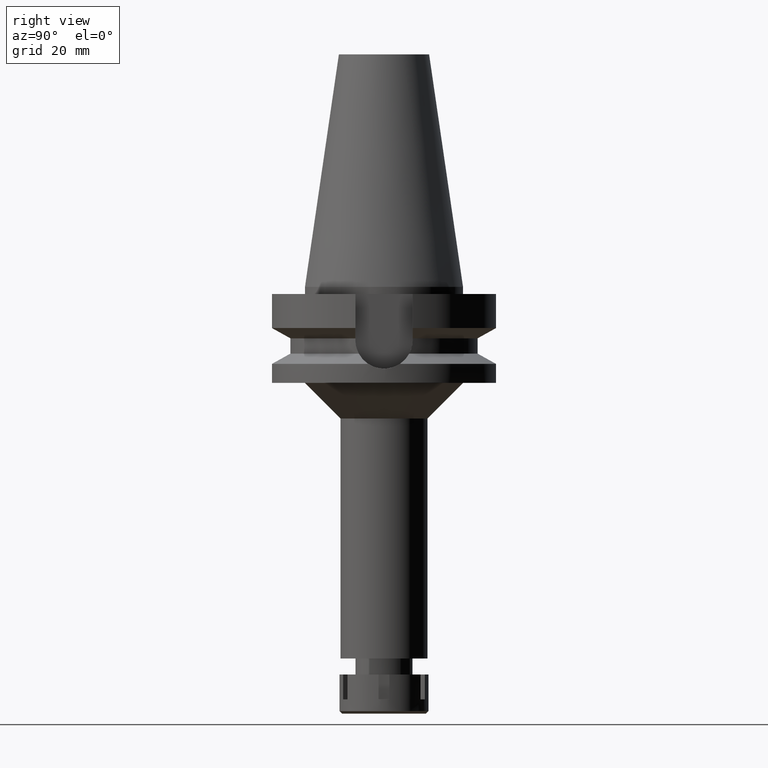
[diagram: clean part render]
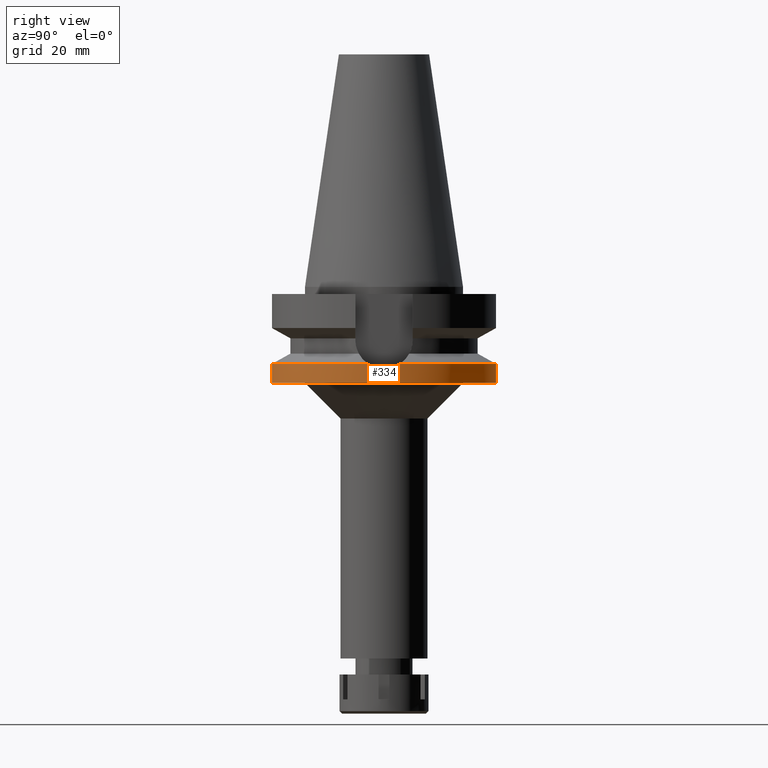
[diagram: same view with one face highlighted and labeled with its STEP entity id]
A machine part, right view. The second image highlights one B-rep face of the part: STEP entity #334.
In plain terms, the highlighted cylindrical surface (partial cylindrical patch) has radius 31.5 mm, axis along (0, 0, -1).
Its self-contained STEP definition (entity closure, byte-faithful):
#7 = CARTESIAN_POINT ( 'NONE',  ( 31.49278356124018430, 0.7711873034585519093, -22.97267690003748797 ) ) ;
#28 = ORIENTED_EDGE ( 'NONE', *, *, #3247, .T. ) ;
#34 = CARTESIAN_POINT ( 'NONE',  ( 0.0000000000000000000, 31.50000000000000000, -21.63449434733000132 ) ) ;
#54 = AXIS2_PLACEMENT_3D ( 'NONE', #587, #1985, #2297 ) ;
#124 = B_SPLINE_CURVE_WITH_KNOTS ( 'NONE', 3,
 ( #285, #2193, #7, #3601, #1409, #2209, #2486, #3630, #1657, #3310, #514, #530, #818, #3326, #267 ),
 .UNSPECIFIED., .F., .F.,
 ( 4, 2, 2, 1, 1, 1, 2, 2, 4 ),
 ( 0.0000000000000000000, 0.2500000000000004441, 0.3750000000000004441, 0.4375000000000006661, 0.4687500000000011657, 0.4843750000000011657, 0.4921875000000012768, 0.5000000000000013323, 1.000000000000000000 ),
 .UNSPECIFIED. ) ;
#149 = CARTESIAN_POINT ( 'NONE',  ( 31.40205153632907198, -2.481143929156545802, -22.60832449611487860 ) ) ;
#189 = EDGE_CURVE ( 'NONE', #675, #2168, #2985, .T. ) ;
#267 = CARTESIAN_POINT ( 'NONE',  ( 31.17899877608999759, 4.485536235554000051, -21.63449434733000132 ) ) ;
#285 = CARTESIAN_POINT ( 'NONE',  ( 31.50000030226999570, 4.154793140189999711E-14, -23.00000138148999795 ) ) ;
#334 = ADVANCED_FACE ( 'NONE', ( #1579 ), #1335, .T. ) ;
#402 = CARTESIAN_POINT ( 'NONE',  ( 0.0000000000000000000, 31.50000000000000000, -21.63449434733000132 ) ) ;
#413 = EDGE_CURVE ( 'NONE', #3111, #1656, #3233, .T. ) ;
#442 = CARTESIAN_POINT ( 'NONE',  ( 31.50000030226999570, 4.154793140189999711E-14, -23.00000138148999795 ) ) ;
#489 = CARTESIAN_POINT ( 'NONE',  ( 0.0000000000000000000, 2.135416623673000070E-14, -27.00000000000000000 ) ) ;
#491 = DIRECTION ( 'NONE',  ( 0.0000000000000000000, -1.000000000000000000, 0.0000000000000000000 ) ) ;
#495 = VECTOR ( 'NONE', #2205, 1000.000000000000000 ) ;
#514 = CARTESIAN_POINT ( 'NONE',  ( 31.41519654757096802, 2.308329250097261198, -22.66195675239512752 ) ) ;
#530 = CARTESIAN_POINT ( 'NONE',  ( 31.41418307692317313, 2.322078179470666637, -22.65782554032704965 ) ) ;
#587 = CARTESIAN_POINT ( 'NONE',  ( 0.0000000000000000000, 0.0000000000000000000, -21.63449434733000132 ) ) ;
#675 = VERTEX_POINT ( 'NONE', #1827 ) ;
#711 = ORIENTED_EDGE ( 'NONE', *, *, #3063, .F. ) ;
#818 = CARTESIAN_POINT ( 'NONE',  ( 31.36324472120876550, 3.008186403282153254, -22.45010119746911315 ) ) ;
#975 = CARTESIAN_POINT ( 'NONE',  ( 31.27811616779987247, -3.746663409866644923, -22.08609477308995750 ) ) ;
#1041 = DIRECTION ( 'NONE',  ( 0.0000000000000000000, 0.0000000000000000000, -1.000000000000000000 ) ) ;
#1043 = ORIENTED_EDGE ( 'NONE', *, *, #1913, .F. ) ;
#1063 = CARTESIAN_POINT ( 'NONE',  ( 0.0000000000000000000, -31.50000000000000000, -21.63449434733000132 ) ) ;
#1078 = B_SPLINE_CURVE_WITH_KNOTS ( 'NONE', 3,
 ( #3274, #2083, #975, #3219, #2106, #1834, #2637, #149, #3241, #3502, #2953, #3559, #2141, #2991, #442 ),
 .UNSPECIFIED., .F., .F.,
 ( 4, 2, 2, 1, 1, 1, 2, 2, 4 ),
 ( 0.0000000000000000000, 0.2500000000000025535, 0.3750000000000032752, 0.4375000000000038303, 0.4687500000000041078, 0.4843750000000038858, 0.4921875000000039413, 0.5000000000000038858, 1.000000000000000000 ),
 .UNSPECIFIED. ) ;
#1102 = CARTESIAN_POINT ( 'NONE',  ( 31.17899877608999759, 4.485536235554000051, -21.63449434733000132 ) ) ;
#1154 = DIRECTION ( 'NONE',  ( 0.0000000000000000000, 1.099151708819000049E-13, -1.000000000000000000 ) ) ;
#1335 = CYLINDRICAL_SURFACE ( 'NONE', #3164, 31.50000000000000000 ) ;
#1409 = CARTESIAN_POINT ( 'NONE',  ( 31.46211241186344765, 1.552211430619329091, -22.85146869856793828 ) ) ;
#1503 = CARTESIAN_POINT ( 'NONE',  ( 0.0000000000000000000, 0.0000000000000000000, -21.63449434733000132 ) ) ;
#1579 = FACE_OUTER_BOUND ( 'NONE', #2222, .T. ) ;
#1656 = VERTEX_POINT ( 'NONE', #1102 ) ;
#1657 = CARTESIAN_POINT ( 'NONE',  ( 31.41961539193199826, 2.247536052689412589, -22.67995511560733135 ) ) ;
#1763 = CARTESIAN_POINT ( 'NONE',  ( 0.0000000000000000000, -31.50000000000000000, -27.00000000000000000 ) ) ;
#1765 = ORIENTED_EDGE ( 'NONE', *, *, #189, .T. ) ;
#1827 = CARTESIAN_POINT ( 'NONE',  ( 31.17899877608999759, -4.485536235554000051, -21.63449434733000132 ) ) ;
#1834 = CARTESIAN_POINT ( 'NONE',  ( 31.37855930989746156, -2.761990093287100212, -22.51192666843388324 ) ) ;
#1874 = AXIS2_PLACEMENT_3D ( 'NONE', #1503, #2909, #2356 ) ;
#1913 = EDGE_CURVE ( 'NONE', #3111, #2009, #2546, .T. ) ;
#1985 = DIRECTION ( 'NONE',  ( 0.0000000000000000000, 0.0000000000000000000, -1.000000000000000000 ) ) ;
#1991 = VERTEX_POINT ( 'NONE', #1763 ) ;
#2009 = VERTEX_POINT ( 'NONE', #2660 ) ;
#2031 = CIRCLE ( 'NONE', #2922, 31.50000000000000000 ) ;
#2033 = ORIENTED_EDGE ( 'NONE', *, *, #2846, .F. ) ;
#2083 = CARTESIAN_POINT ( 'NONE',  ( 31.23205437648185168, -4.116746326629337815, -21.88196564640763953 ) ) ;
#2095 = ORIENTED_EDGE ( 'NONE', *, *, #413, .T. ) ;
#2106 = CARTESIAN_POINT ( 'NONE',  ( 31.35450368001973231, -3.025551444174683802, -22.41216023115313050 ) ) ;
#2138 = CARTESIAN_POINT ( 'NONE',  ( 0.0000000000000000000, 2.135416623673000070E-14, 74.37000000000000455 ) ) ;
#2141 = CARTESIAN_POINT ( 'NONE',  ( 31.47113575803164309, -1.554964651594184843, -22.89006402809559049 ) ) ;
#2168 = VERTEX_POINT ( 'NONE', #2458 ) ;
#2193 = CARTESIAN_POINT ( 'NONE',  ( 31.50000030227001346, 0.3826090917182346507, -23.00000000000000355 ) ) ;
#2205 = DIRECTION ( 'NONE',  ( 0.0000000000000000000, -1.105773104655000034E-13, -1.000000000000000000 ) ) ;
#2209 = CARTESIAN_POINT ( 'NONE',  ( 31.44587474454636222, 1.845305156384686729, -22.78628520791379586 ) ) ;
#2222 = EDGE_LOOP ( 'NONE', ( #1765, #28, #2355, #1043, #2095, #2033, #711 ) ) ;
#2297 = DIRECTION ( 'NONE',  ( 0.0000000000000000000, 1.000000000000000000, 0.0000000000000000000 ) ) ;
#2355 = ORIENTED_EDGE ( 'NONE', *, *, #2492, .T. ) ;
#2356 = DIRECTION ( 'NONE',  ( 0.9898094849552905306, -0.1423979757318985240, 0.0000000000000000000 ) ) ;
#2430 = DIRECTION ( 'NONE',  ( 0.0000000000000000000, -1.000000000000000000, 0.0000000000000000000 ) ) ;
#2458 = CARTESIAN_POINT ( 'NONE',  ( 0.0000000000000000000, -31.50000000000000000, -21.63449434733000132 ) ) ;
#2486 = CARTESIAN_POINT ( 'NONE',  ( 31.43707934141627547, 1.991785373727276820, -22.75083979997737416 ) ) ;
#2492 = EDGE_CURVE ( 'NONE', #1991, #2009, #2031, .T. ) ;
#2517 = LINE ( 'NONE', #1063, #495 ) ;
#2546 = LINE ( 'NONE', #34, #2789 ) ;
#2637 = CARTESIAN_POINT ( 'NONE',  ( 31.38993145523567208, -2.631335982978365351, -22.55874663194875041 ) ) ;
#2660 = CARTESIAN_POINT ( 'NONE',  ( 0.0000000000000000000, 31.50000000000000000, -27.00000000000000000 ) ) ;
#2729 = CARTESIAN_POINT ( 'NONE',  ( 31.50000030226999570, 4.154793140189999711E-14, -23.00000138148999795 ) ) ;
#2789 = VECTOR ( 'NONE', #1154, 1000.000000000000000 ) ;
#2846 = EDGE_CURVE ( 'NONE', #3208, #1656, #124, .T. ) ;
#2909 = DIRECTION ( 'NONE',  ( 0.0000000000000000000, 0.0000000000000000000, -1.000000000000000000 ) ) ;
#2922 = AXIS2_PLACEMENT_3D ( 'NONE', #489, #2984, #2430 ) ;
#2953 = CARTESIAN_POINT ( 'NONE',  ( 31.41183231690728661, -2.353663757143418689, -22.64823938059995001 ) ) ;
#2984 = DIRECTION ( 'NONE',  ( 0.0000000000000000000, 0.0000000000000000000, 1.000000000000000000 ) ) ;
#2985 = CIRCLE ( 'NONE', #1874, 31.50000000000001421 ) ;
#2991 = CARTESIAN_POINT ( 'NONE',  ( 31.50000030226999925, -0.7652255573043680315, -23.00000000000000000 ) ) ;
#3063 = EDGE_CURVE ( 'NONE', #675, #3208, #1078, .T. ) ;
#3111 = VERTEX_POINT ( 'NONE', #402 ) ;
#3164 = AXIS2_PLACEMENT_3D ( 'NONE', #2138, #1041, #491 ) ;
#3208 = VERTEX_POINT ( 'NONE', #2729 ) ;
#3219 = CARTESIAN_POINT ( 'NONE',  ( 31.33671814116611287, -3.204274407353942866, -22.33747821328194405 ) ) ;
#3233 = CIRCLE ( 'NONE', #54, 31.50000000000000000 ) ;
#3241 = CARTESIAN_POINT ( 'NONE',  ( 31.40782472142544890, -2.406637570769966761, -22.63189169568958548 ) ) ;
#3247 = EDGE_CURVE ( 'NONE', #2168, #1991, #2517, .T. ) ;
#3274 = CARTESIAN_POINT ( 'NONE',  ( 31.17899877608999759, -4.485536235554000051, -21.63449434733000132 ) ) ;
#3310 = CARTESIAN_POINT ( 'NONE',  ( 31.41697254243377913, 2.284015593791402843, -22.66919255136086520 ) ) ;
#3326 = CARTESIAN_POINT ( 'NONE',  ( 31.28511117660137586, 3.747948078438597896, -22.12944254142950129 ) ) ;
#3502 = CARTESIAN_POINT ( 'NONE',  ( 31.41023747458456583, -2.374835805079123840, -22.64173436499367043 ) ) ;
#3559 = CARTESIAN_POINT ( 'NONE',  ( 31.41250465254752910, -2.344685119770060222, -22.65098129005091110 ) ) ;
#3601 = CARTESIAN_POINT ( 'NONE',  ( 31.47113333815072167, 1.356640495746125774, -22.88731189951323586 ) ) ;
#3630 = CARTESIAN_POINT ( 'NONE',  ( 31.42563404118930137, 2.162357063251356681, -22.70443063268590222 ) ) ;